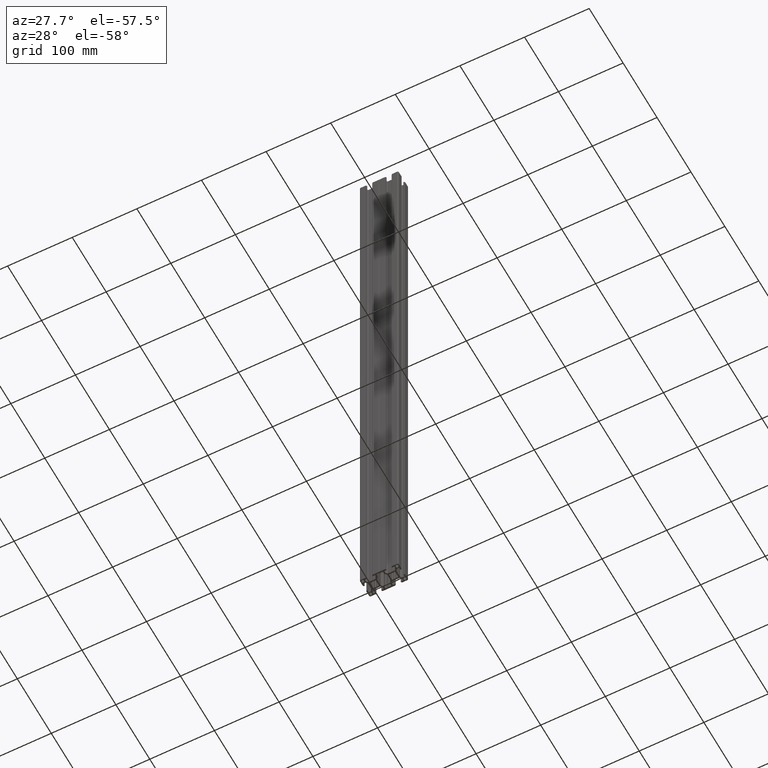
[diagram: clean part render]
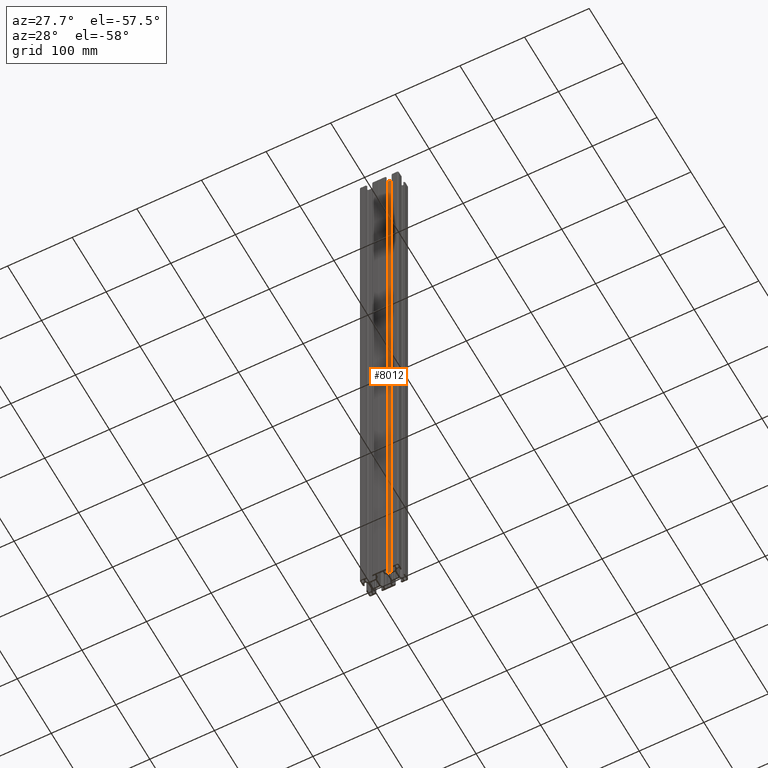
[diagram: same view with one face highlighted and labeled with its STEP entity id]
A machine part, auxiliary view. The second image highlights one B-rep face of the part: STEP entity #8012.
In plain terms, the highlighted planar face has unit normal (0, -1, 0).
Its self-contained STEP definition (entity closure, byte-faithful):
#57 = LINE ( 'NONE', #8883, #4655 ) ;
#899 = DIRECTION ( 'NONE',  ( 0.0000000000000000000, 0.0000000000000000000, 1.000000000000000000 ) ) ;
#988 = PLANE ( 'NONE',  #2909 ) ;
#1076 = EDGE_CURVE ( 'NONE', #7500, #9474, #1767, .T. ) ;
#1617 = LINE ( 'NONE', #8443, #9606 ) ;
#1620 = CARTESIAN_POINT ( 'NONE',  ( 30.00000000000003197, -6.999999999999993783, 0.0000000000000000000 ) ) ;
#1767 = LINE ( 'NONE', #1620, #2816 ) ;
#2069 = EDGE_CURVE ( 'NONE', #7500, #3884, #1617, .T. ) ;
#2192 = DIRECTION ( 'NONE',  ( -1.000000000000000000, 0.0000000000000000000, 0.0000000000000000000 ) ) ;
#2317 = CARTESIAN_POINT ( 'NONE',  ( 29.47430609056703688, -6.999999999999993783, -1000.000000000000000 ) ) ;
#2816 = VECTOR ( 'NONE', #6228, 1000.000000000000000 ) ;
#2909 = AXIS2_PLACEMENT_3D ( 'NONE', #4067, #7066, #899 ) ;
#2925 = LINE ( 'NONE', #5911, #8795 ) ;
#3504 = ORIENTED_EDGE ( 'NONE', *, *, #2069, .T. ) ;
#3884 = VERTEX_POINT ( 'NONE', #5180 ) ;
#3979 = EDGE_CURVE ( 'NONE', #7965, #3884, #2925, .T. ) ;
#4067 = CARTESIAN_POINT ( 'NONE',  ( 30.00000000000003197, -6.999999999999993783, -1021.213203435596256 ) ) ;
#4655 = VECTOR ( 'NONE', #5878, 1000.000000000000000 ) ;
#4711 = FACE_OUTER_BOUND ( 'NONE', #6155, .T. ) ;
#4797 = ORIENTED_EDGE ( 'NONE', *, *, #3979, .F. ) ;
#5180 = CARTESIAN_POINT ( 'NONE',  ( 24.72487373415295053, -6.999999999999993783, -1000.000000000000000 ) ) ;
#5402 = ORIENTED_EDGE ( 'NONE', *, *, #9205, .T. ) ;
#5878 = DIRECTION ( 'NONE',  ( 0.0000000000000000000, 0.0000000000000000000, 1.000000000000000000 ) ) ;
#5911 = CARTESIAN_POINT ( 'NONE',  ( 30.00000000000003197, -6.999999999999993783, -1000.000000000000000 ) ) ;
#6155 = EDGE_LOOP ( 'NONE', ( #4797, #5402, #7530, #3504 ) ) ;
#6228 = DIRECTION ( 'NONE',  ( 1.000000000000000000, 0.0000000000000000000, 0.0000000000000000000 ) ) ;
#7066 = DIRECTION ( 'NONE',  ( 0.0000000000000000000, -1.000000000000000000, 0.0000000000000000000 ) ) ;
#7104 = CARTESIAN_POINT ( 'NONE',  ( 29.47430609056703688, -6.999999999999993783, 0.0000000000000000000 ) ) ;
#7500 = VERTEX_POINT ( 'NONE', #9559 ) ;
#7530 = ORIENTED_EDGE ( 'NONE', *, *, #1076, .F. ) ;
#7560 = DIRECTION ( 'NONE',  ( -0.0000000000000000000, -0.0000000000000000000, -1.000000000000000000 ) ) ;
#7965 = VERTEX_POINT ( 'NONE', #2317 ) ;
#8012 = ADVANCED_FACE ( 'NONE', ( #4711 ), #988, .T. ) ;
#8443 = CARTESIAN_POINT ( 'NONE',  ( 24.72487373415295053, -6.999999999999993783, -1000.000000000000000 ) ) ;
#8795 = VECTOR ( 'NONE', #2192, 1000.000000000000000 ) ;
#8883 = CARTESIAN_POINT ( 'NONE',  ( 29.47430609056703688, -6.999999999999993783, 0.0000000000000000000 ) ) ;
#9205 = EDGE_CURVE ( 'NONE', #7965, #9474, #57, .T. ) ;
#9474 = VERTEX_POINT ( 'NONE', #7104 ) ;
#9559 = CARTESIAN_POINT ( 'NONE',  ( 24.72487373415295053, -6.999999999999993783, 0.0000000000000000000 ) ) ;
#9606 = VECTOR ( 'NONE', #7560, 1000.000000000000000 ) ;